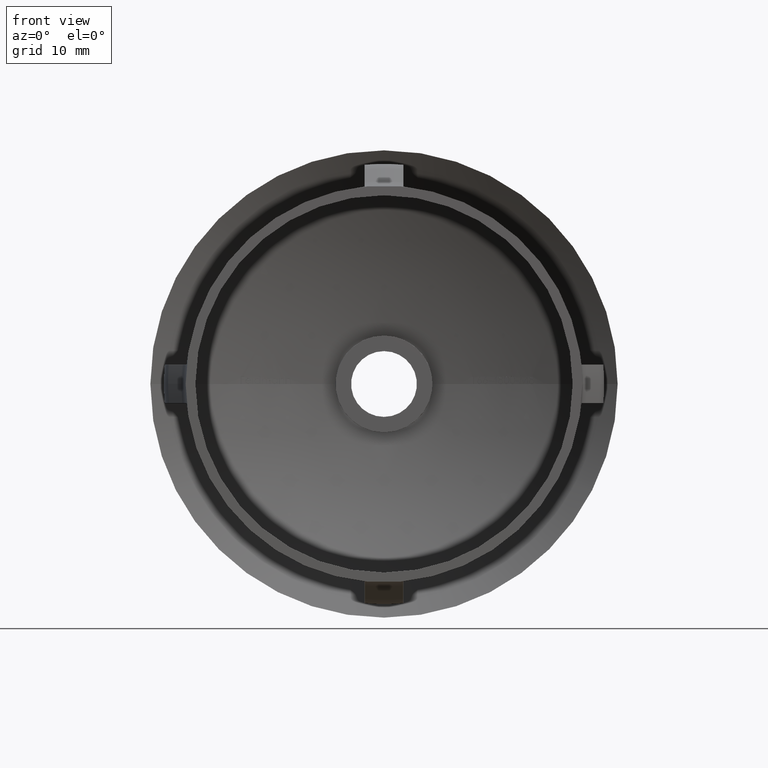
[diagram: clean part render]
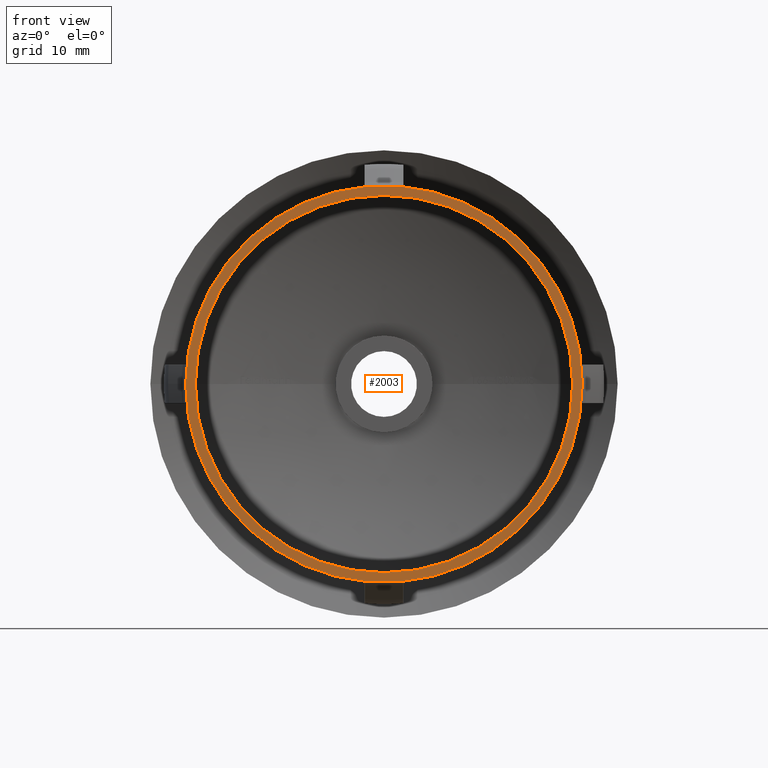
[diagram: same view with one face highlighted and labeled with its STEP entity id]
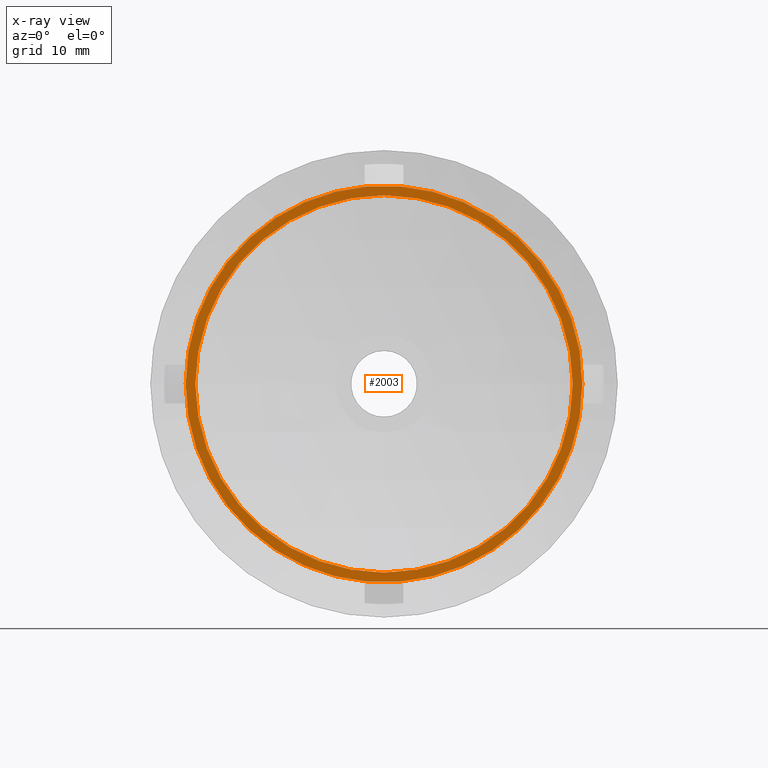
[diagram: x-ray of the same camera — body ghosted, the highlighted face saturated]
A machine part, front view. The second image highlights one B-rep face of the part: STEP entity #2003.
The next image is the same camera in x-ray: the body ghosted, the highlighted face saturated — about 0% of this face is hidden behind the body in this view.
In plain terms, the highlighted planar face has unit normal (-0, -1, 0).
Its self-contained STEP definition (entity closure, byte-faithful):
#700 = CARTESIAN_POINT ( 'NONE',  ( -8.743635244808318400E-014, 5.551115123125782700E-014, 0.0000000000000000000 ) ) ;
#737 = VERTEX_POINT ( 'NONE', #4948 ) ;
#850 = CIRCLE ( 'NONE', #5994, 19.50000000000008500 ) ;
#1059 = ORIENTED_EDGE ( 'NONE', *, *, #7842, .T. ) ;
#1836 = ORIENTED_EDGE ( 'NONE', *, *, #15949, .F. ) ;
#2003 = ADVANCED_FACE ( 'NONE', ( #6093, #7326 ), #15889, .T. ) ;
#2323 = CIRCLE ( 'NONE', #15559, 20.50000000000009200 ) ;
#2733 = EDGE_CURVE ( 'NONE', #737, #4547, #850, .T. ) ;
#3108 = EDGE_LOOP ( 'NONE', ( #1836, #6595 ) ) ;
#3556 = CARTESIAN_POINT ( 'NONE',  ( 20.50000000000000400, -5.690770721279668900E-016, 0.0000000000000000000 ) ) ;
#4145 = CIRCLE ( 'NONE', #13747, 19.50000000000008500 ) ;
#4547 = VERTEX_POINT ( 'NONE', #6342 ) ;
#4840 = DIRECTION ( 'NONE',  ( 1.000000000000000000, -2.904862207577519400E-015, 0.0000000000000000000 ) ) ;
#4882 = VERTEX_POINT ( 'NONE', #3556 ) ;
#4948 = CARTESIAN_POINT ( 'NONE',  ( -19.50000000000017400, 1.121559642790197000E-013, 2.388061258337353900E-015 ) ) ;
#4989 = CARTESIAN_POINT ( 'NONE',  ( -8.743635244808317200E-014, 5.898059818321144100E-014, 0.0000000000000000000 ) ) ;
#5288 = CARTESIAN_POINT ( 'NONE',  ( -20.50000000000017800, 1.185302734385508700E-013, 2.510525938252089900E-015 ) ) ;
#5994 = AXIS2_PLACEMENT_3D ( 'NONE', #6752, #13420, #10751 ) ;
#6093 = FACE_OUTER_BOUND ( 'NONE', #11262, .T. ) ;
#6342 = CARTESIAN_POINT ( 'NONE',  ( 19.50000000000000000, -1.133661816504052900E-015, 0.0000000000000000000 ) ) ;
#6469 = AXIS2_PLACEMENT_3D ( 'NONE', #10286, #15654, #7734 ) ;
#6595 = ORIENTED_EDGE ( 'NONE', *, *, #2733, .F. ) ;
#6752 = CARTESIAN_POINT ( 'NONE',  ( -8.743635244808318400E-014, 5.551115123125782700E-014, 0.0000000000000000000 ) ) ;
#7326 = FACE_BOUND ( 'NONE', #3108, .T. ) ;
#7478 = DIRECTION ( 'NONE',  ( -2.904862207577519400E-015, -1.000000000000000000, -0.0000000000000000000 ) ) ;
#7734 = DIRECTION ( 'NONE',  ( 1.000000000000000000, -2.904862207577519000E-015, 0.0000000000000000000 ) ) ;
#7842 = EDGE_CURVE ( 'NONE', #12761, #4882, #9003, .T. ) ;
#9003 = CIRCLE ( 'NONE', #6469, 20.50000000000009200 ) ;
#9015 = DIRECTION ( 'NONE',  ( 1.000000000000000000, -2.904862207577519000E-015, 0.0000000000000000000 ) ) ;
#9333 = AXIS2_PLACEMENT_3D ( 'NONE', #10696, #13369, #14454 ) ;
#9654 = EDGE_CURVE ( 'NONE', #4882, #12761, #2323, .T. ) ;
#10286 = CARTESIAN_POINT ( 'NONE',  ( -8.743635244808317200E-014, 5.898059818321144100E-014, 0.0000000000000000000 ) ) ;
#10696 = CARTESIAN_POINT ( 'NONE',  ( 19.50000000000000000, 1.421814933810087200E-015, 0.0000000000000000000 ) ) ;
#10751 = DIRECTION ( 'NONE',  ( 1.000000000000000000, -2.904862207577519400E-015, 0.0000000000000000000 ) ) ;
#11262 = EDGE_LOOP ( 'NONE', ( #14823, #1059 ) ) ;
#12761 = VERTEX_POINT ( 'NONE', #5288 ) ;
#13369 = DIRECTION ( 'NONE',  ( -2.904862207577519400E-015, -1.000000000000000000, 0.0000000000000000000 ) ) ;
#13420 = DIRECTION ( 'NONE',  ( -2.904862207577519400E-015, -1.000000000000000000, -0.0000000000000000000 ) ) ;
#13747 = AXIS2_PLACEMENT_3D ( 'NONE', #700, #7478, #4840 ) ;
#14454 = DIRECTION ( 'NONE',  ( 1.000000000000000000, -2.904862207577519400E-015, 0.0000000000000000000 ) ) ;
#14823 = ORIENTED_EDGE ( 'NONE', *, *, #9654, .T. ) ;
#15559 = AXIS2_PLACEMENT_3D ( 'NONE', #4989, #15653, #9015 ) ;
#15653 = DIRECTION ( 'NONE',  ( -2.904862207577519400E-015, -1.000000000000000000, -0.0000000000000000000 ) ) ;
#15654 = DIRECTION ( 'NONE',  ( -2.904862207577519400E-015, -1.000000000000000000, -0.0000000000000000000 ) ) ;
#15889 = PLANE ( 'NONE',  #9333 ) ;
#15949 = EDGE_CURVE ( 'NONE', #4547, #737, #4145, .T. ) ;